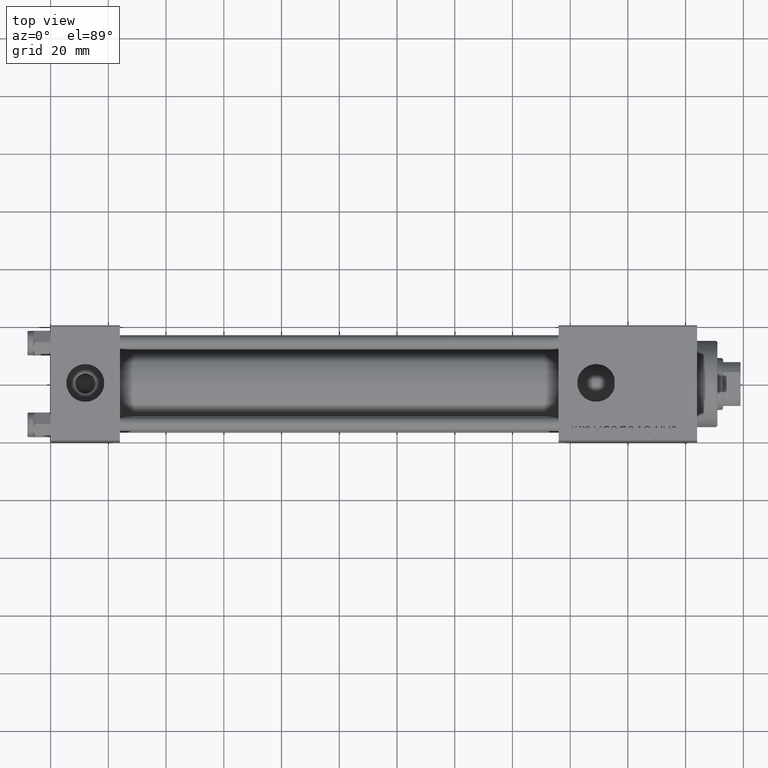
[diagram: clean part render]
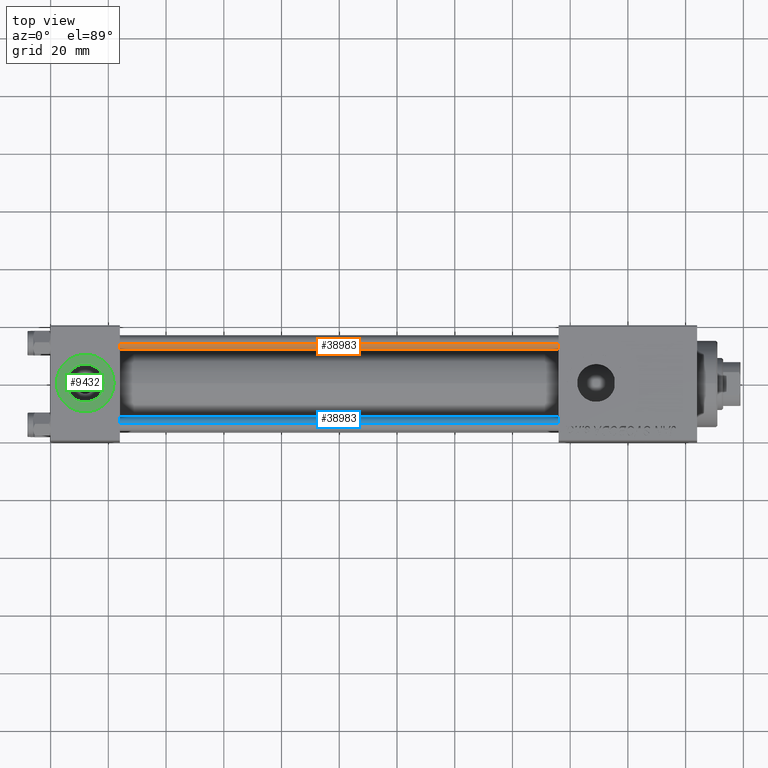
[diagram: same view with three faces highlighted in distinct colors, each labeled with its STEP entity id]
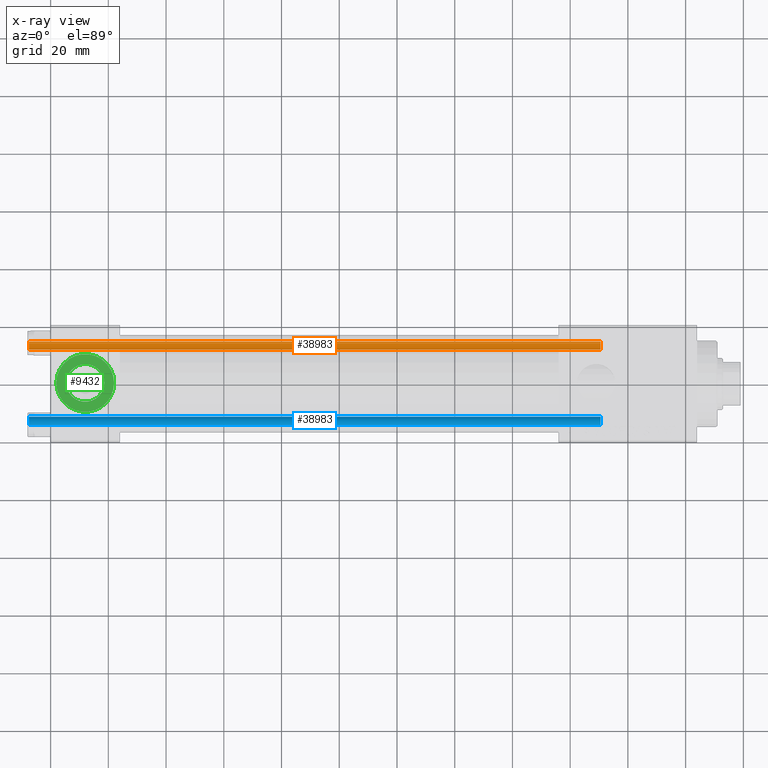
[diagram: x-ray of the same camera — body ghosted, the three highlighted faces saturated]
A machine part, top view with three faces highlighted in distinct colors.
The next image is the same camera in x-ray (body ghosted, the three faces saturated) — at least one of them is partly hidden behind the body in this view.
Their STEP definitions:

[orange] entity #38983 — the highlighted cylindrical surface (edge-blend (fillet) strip) has radius 2.5 mm, axis along (-1, 0, 0).
#69 = DIRECTION ( 'NONE',  ( -0.000000000000000000, -0.000000000000000000, -1.000000000000000000 ) ) ;
#1280 = ORIENTED_EDGE ( 'NONE', *, *, #42677, .F. ) ;
#2917 = LINE ( 'NONE', #14858, #28982 ) ;
#3929 = DIRECTION ( 'NONE',  ( 1.000000000000000000, 0.000000000000000000, 0.000000000000000000 ) ) ;
#4058 = AXIS2_PLACEMENT_3D ( 'NONE', #13968, #5838, #6593 ) ;
#5838 = DIRECTION ( 'NONE',  ( 0.000000000000000000, 0.000000000000000000, -1.000000000000000000 ) ) ;
#6593 = DIRECTION ( 'NONE',  ( 1.000000000000000000, 0.000000000000000000, 0.000000000000000000 ) ) ;
#8882 = VERTEX_POINT ( 'NONE', #38045 ) ;
#9136 = ORIENTED_EDGE ( 'NONE', *, *, #47743, .T. ) ;
#10775 = ORIENTED_EDGE ( 'NONE', *, *, #36088, .T. ) ;
#11008 = FACE_OUTER_BOUND ( 'NONE', #19897, .T. ) ;
#11288 = CARTESIAN_POINT ( 'NONE',  ( -2.500000000000000000, 0.000000000000000000, 0.5000000000000004441 ) ) ;
#11291 = DIRECTION ( 'NONE',  ( -0.000000000000000000, -0.000000000000000000, -1.000000000000000000 ) ) ;
#11557 = CARTESIAN_POINT ( 'NONE',  ( 0.000000000000000000, 0.000000000000000000, 0.5000000000000004441 ) ) ;
#13217 = AXIS2_PLACEMENT_3D ( 'NONE', #15072, #69, #15571 ) ;
#13968 = CARTESIAN_POINT ( 'NONE',  ( 0.000000000000000000, 0.000000000000000000, 198.5000000000000284 ) ) ;
#14858 = CARTESIAN_POINT ( 'NONE',  ( -2.500000000000000000, 0.000000000000000000, 199.0000000000000000 ) ) ;
#15072 = CARTESIAN_POINT ( 'NONE',  ( 0.000000000000000000, 0.000000000000000000, 199.0000000000000000 ) ) ;
#15571 = DIRECTION ( 'NONE',  ( -1.000000000000000000, 0.000000000000000000, 0.000000000000000000 ) ) ;
#15749 = VERTEX_POINT ( 'NONE', #11288 ) ;
#17576 = VERTEX_POINT ( 'NONE', #19761 ) ;
#19761 = CARTESIAN_POINT ( 'NONE',  ( 2.500000000000000000, 3.061616997868383141E-16, 0.5000000000000004441 ) ) ;
#19897 = EDGE_LOOP ( 'NONE', ( #1280, #26069, #9136, #10775 ) ) ;
#20012 = VERTEX_POINT ( 'NONE', #30418 ) ;
#22248 = LINE ( 'NONE', #26045, #43334 ) ;
#25540 = DIRECTION ( 'NONE',  ( -0.000000000000000000, -0.000000000000000000, -1.000000000000000000 ) ) ;
#26045 = CARTESIAN_POINT ( 'NONE',  ( 2.500000000000000000, 3.061616997868383141E-16, 199.0000000000000000 ) ) ;
#26069 = ORIENTED_EDGE ( 'NONE', *, *, #28478, .T. ) ;
#28478 = EDGE_CURVE ( 'NONE', #8882, #20012, #46269, .T. ) ;
#28982 = VECTOR ( 'NONE', #25540, 1000.000000000000000 ) ;
#30371 = DIRECTION ( 'NONE',  ( -0.000000000000000000, -0.000000000000000000, 1.000000000000000000 ) ) ;
#30418 = CARTESIAN_POINT ( 'NONE',  ( -2.500000000000000000, 0.000000000000000000, 198.5000000000000284 ) ) ;
#33378 = AXIS2_PLACEMENT_3D ( 'NONE', #11557, #30371, #3929 ) ;
#36088 = EDGE_CURVE ( 'NONE', #15749, #17576, #43113, .T. ) ;
#38045 = CARTESIAN_POINT ( 'NONE',  ( 2.500000000000000000, 3.061616997868383141E-16, 198.5000000000000284 ) ) ;
#38178 = CYLINDRICAL_SURFACE ( 'NONE', #13217, 2.500000000000000000 ) ;
#38983 = ADVANCED_FACE ( 'NONE', ( #11008 ), #38178, .T. ) ;
#42677 = EDGE_CURVE ( 'NONE', #8882, #17576, #22248, .T. ) ;
#43113 = CIRCLE ( 'NONE', #33378, 2.500000000000000000 ) ;
#43334 = VECTOR ( 'NONE', #11291, 1000.000000000000000 ) ;
#46269 = CIRCLE ( 'NONE', #4058, 2.500000000000000000 ) ;
#47743 = EDGE_CURVE ( 'NONE', #20012, #15749, #2917, .T. ) ;

[blue] entity #38983 — the highlighted cylindrical surface (edge-blend (fillet) strip) has radius 2.5 mm, axis along (1, 0, -0).
#69 = DIRECTION ( 'NONE',  ( -0.000000000000000000, -0.000000000000000000, -1.000000000000000000 ) ) ;
#1280 = ORIENTED_EDGE ( 'NONE', *, *, #42677, .F. ) ;
#2917 = LINE ( 'NONE', #14858, #28982 ) ;
#3929 = DIRECTION ( 'NONE',  ( 1.000000000000000000, 0.000000000000000000, 0.000000000000000000 ) ) ;
#4058 = AXIS2_PLACEMENT_3D ( 'NONE', #13968, #5838, #6593 ) ;
#5838 = DIRECTION ( 'NONE',  ( 0.000000000000000000, 0.000000000000000000, -1.000000000000000000 ) ) ;
#6593 = DIRECTION ( 'NONE',  ( 1.000000000000000000, 0.000000000000000000, 0.000000000000000000 ) ) ;
#8882 = VERTEX_POINT ( 'NONE', #38045 ) ;
#9136 = ORIENTED_EDGE ( 'NONE', *, *, #47743, .T. ) ;
#10775 = ORIENTED_EDGE ( 'NONE', *, *, #36088, .T. ) ;
#11008 = FACE_OUTER_BOUND ( 'NONE', #19897, .T. ) ;
#11288 = CARTESIAN_POINT ( 'NONE',  ( -2.500000000000000000, 0.000000000000000000, 0.5000000000000004441 ) ) ;
#11291 = DIRECTION ( 'NONE',  ( -0.000000000000000000, -0.000000000000000000, -1.000000000000000000 ) ) ;
#11557 = CARTESIAN_POINT ( 'NONE',  ( 0.000000000000000000, 0.000000000000000000, 0.5000000000000004441 ) ) ;
#13217 = AXIS2_PLACEMENT_3D ( 'NONE', #15072, #69, #15571 ) ;
#13968 = CARTESIAN_POINT ( 'NONE',  ( 0.000000000000000000, 0.000000000000000000, 198.5000000000000284 ) ) ;
#14858 = CARTESIAN_POINT ( 'NONE',  ( -2.500000000000000000, 0.000000000000000000, 199.0000000000000000 ) ) ;
#15072 = CARTESIAN_POINT ( 'NONE',  ( 0.000000000000000000, 0.000000000000000000, 199.0000000000000000 ) ) ;
#15571 = DIRECTION ( 'NONE',  ( -1.000000000000000000, 0.000000000000000000, 0.000000000000000000 ) ) ;
#15749 = VERTEX_POINT ( 'NONE', #11288 ) ;
#17576 = VERTEX_POINT ( 'NONE', #19761 ) ;
#19761 = CARTESIAN_POINT ( 'NONE',  ( 2.500000000000000000, 3.061616997868383141E-16, 0.5000000000000004441 ) ) ;
#19897 = EDGE_LOOP ( 'NONE', ( #1280, #26069, #9136, #10775 ) ) ;
#20012 = VERTEX_POINT ( 'NONE', #30418 ) ;
#22248 = LINE ( 'NONE', #26045, #43334 ) ;
#25540 = DIRECTION ( 'NONE',  ( -0.000000000000000000, -0.000000000000000000, -1.000000000000000000 ) ) ;
#26045 = CARTESIAN_POINT ( 'NONE',  ( 2.500000000000000000, 3.061616997868383141E-16, 199.0000000000000000 ) ) ;
#26069 = ORIENTED_EDGE ( 'NONE', *, *, #28478, .T. ) ;
#28478 = EDGE_CURVE ( 'NONE', #8882, #20012, #46269, .T. ) ;
#28982 = VECTOR ( 'NONE', #25540, 1000.000000000000000 ) ;
#30371 = DIRECTION ( 'NONE',  ( -0.000000000000000000, -0.000000000000000000, 1.000000000000000000 ) ) ;
#30418 = CARTESIAN_POINT ( 'NONE',  ( -2.500000000000000000, 0.000000000000000000, 198.5000000000000284 ) ) ;
#33378 = AXIS2_PLACEMENT_3D ( 'NONE', #11557, #30371, #3929 ) ;
#36088 = EDGE_CURVE ( 'NONE', #15749, #17576, #43113, .T. ) ;
#38045 = CARTESIAN_POINT ( 'NONE',  ( 2.500000000000000000, 3.061616997868383141E-16, 198.5000000000000284 ) ) ;
#38178 = CYLINDRICAL_SURFACE ( 'NONE', #13217, 2.500000000000000000 ) ;
#38983 = ADVANCED_FACE ( 'NONE', ( #11008 ), #38178, .T. ) ;
#42677 = EDGE_CURVE ( 'NONE', #8882, #17576, #22248, .T. ) ;
#43113 = CIRCLE ( 'NONE', #33378, 2.500000000000000000 ) ;
#43334 = VECTOR ( 'NONE', #11291, 1000.000000000000000 ) ;
#46269 = CIRCLE ( 'NONE', #4058, 2.500000000000000000 ) ;
#47743 = EDGE_CURVE ( 'NONE', #20012, #15749, #2917, .T. ) ;

[green] entity #9432 — the highlighted planar face has unit normal (0, 0, 1).
#2242 = AXIS2_PLACEMENT_3D ( 'NONE', #13679, #25355, #29160 ) ;
#4905 = CIRCLE ( 'NONE', #8158, 6.579999999999999183 ) ;
#5637 = ORIENTED_EDGE ( 'NONE', *, *, #34436, .T. ) ;
#6842 = EDGE_LOOP ( 'NONE', ( #29805, #34676 ) ) ;
#6922 = CARTESIAN_POINT ( 'NONE',  ( 12.00000000000000000, 1.540743955509788682E-30, 19.79999999999999716 ) ) ;
#8158 = AXIS2_PLACEMENT_3D ( 'NONE', #43048, #19442, #11812 ) ;
#8318 = VERTEX_POINT ( 'NONE', #28605 ) ;
#8499 = CARTESIAN_POINT ( 'NONE',  ( 2.000000000000003553, 1.224646799147354440E-15, 19.79999999999999716 ) ) ;
#9432 = ADVANCED_FACE ( 'NONE', ( #16374, #16868 ), #28292, .T. ) ;
#10963 = VERTEX_POINT ( 'NONE', #49965 ) ;
#11812 = DIRECTION ( 'NONE',  ( 1.000000000000000000, 0.000000000000000000, 0.000000000000000000 ) ) ;
#13679 = CARTESIAN_POINT ( 'NONE',  ( 12.00000000000000000, 1.540743955509788682E-30, 19.79999999999999716 ) ) ;
#16374 = FACE_BOUND ( 'NONE', #6842, .T. ) ;
#16868 = FACE_OUTER_BOUND ( 'NONE', #19819, .T. ) ;
#17962 = ORIENTED_EDGE ( 'NONE', *, *, #47377, .T. ) ;
#18872 = DIRECTION ( 'NONE',  ( 1.000000000000000000, 0.000000000000000000, 0.000000000000000000 ) ) ;
#19442 = DIRECTION ( 'NONE',  ( 0.000000000000000000, 0.000000000000000000, 1.000000000000000000 ) ) ;
#19819 = EDGE_LOOP ( 'NONE', ( #17962, #5637 ) ) ;
#20222 = AXIS2_PLACEMENT_3D ( 'NONE', #6922, #37901, #18872 ) ;
#21162 = CARTESIAN_POINT ( 'NONE',  ( 22.00000000000000000, 1.540743955509788682E-30, 19.79999999999999716 ) ) ;
#25001 = EDGE_CURVE ( 'NONE', #8318, #10963, #41286, .T. ) ;
#25355 = DIRECTION ( 'NONE',  ( 0.000000000000000000, 0.000000000000000000, 1.000000000000000000 ) ) ;
#27665 = CIRCLE ( 'NONE', #33343, 9.999999999999998224 ) ;
#28292 = PLANE ( 'NONE',  #29945 ) ;
#28605 = CARTESIAN_POINT ( 'NONE',  ( 18.57999999999999829, 1.540743955509788682E-30, 19.79999999999999716 ) ) ;
#29160 = DIRECTION ( 'NONE',  ( 1.000000000000000000, 0.000000000000000000, 0.000000000000000000 ) ) ;
#29805 = ORIENTED_EDGE ( 'NONE', *, *, #25001, .F. ) ;
#29945 = AXIS2_PLACEMENT_3D ( 'NONE', #31613, #43292, #39469 ) ;
#31613 = CARTESIAN_POINT ( 'NONE',  ( 12.00000000000000000, 1.540743955509788682E-30, 19.79999999999999716 ) ) ;
#33343 = AXIS2_PLACEMENT_3D ( 'NONE', #38434, #50120, #42239 ) ;
#33428 = EDGE_CURVE ( 'NONE', #10963, #8318, #4905, .T. ) ;
#34436 = EDGE_CURVE ( 'NONE', #44246, #40581, #27665, .T. ) ;
#34676 = ORIENTED_EDGE ( 'NONE', *, *, #33428, .F. ) ;
#37901 = DIRECTION ( 'NONE',  ( 0.000000000000000000, 0.000000000000000000, 1.000000000000000000 ) ) ;
#38434 = CARTESIAN_POINT ( 'NONE',  ( 12.00000000000000000, 1.540743955509788682E-30, 19.79999999999999716 ) ) ;
#39469 = DIRECTION ( 'NONE',  ( 1.000000000000000000, 0.000000000000000000, -0.000000000000000000 ) ) ;
#40581 = VERTEX_POINT ( 'NONE', #21162 ) ;
#41286 = CIRCLE ( 'NONE', #20222, 6.579999999999999183 ) ;
#42239 = DIRECTION ( 'NONE',  ( 1.000000000000000000, 0.000000000000000000, 0.000000000000000000 ) ) ;
#43048 = CARTESIAN_POINT ( 'NONE',  ( 12.00000000000000000, 1.540743955509788682E-30, 19.79999999999999716 ) ) ;
#43292 = DIRECTION ( 'NONE',  ( 0.000000000000000000, 0.000000000000000000, 1.000000000000000000 ) ) ;
#44246 = VERTEX_POINT ( 'NONE', #8499 ) ;
#47377 = EDGE_CURVE ( 'NONE', #40581, #44246, #50043, .T. ) ;
#49965 = CARTESIAN_POINT ( 'NONE',  ( 5.420000000000000817, 8.058175938389596335E-16, 19.79999999999999716 ) ) ;
#50043 = CIRCLE ( 'NONE', #2242, 9.999999999999998224 ) ;
#50120 = DIRECTION ( 'NONE',  ( 0.000000000000000000, 0.000000000000000000, 1.000000000000000000 ) ) ;